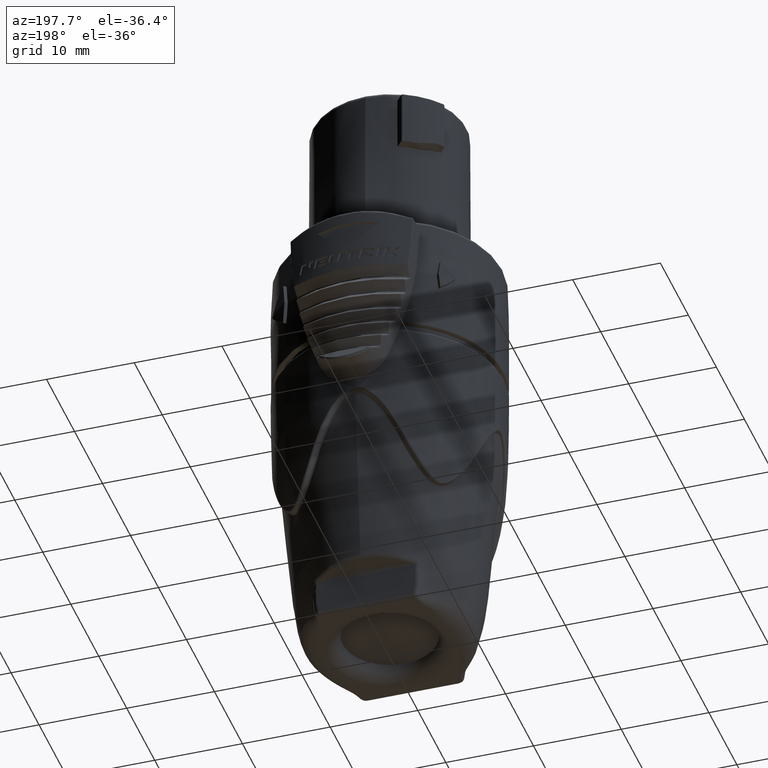
[diagram: clean part render]
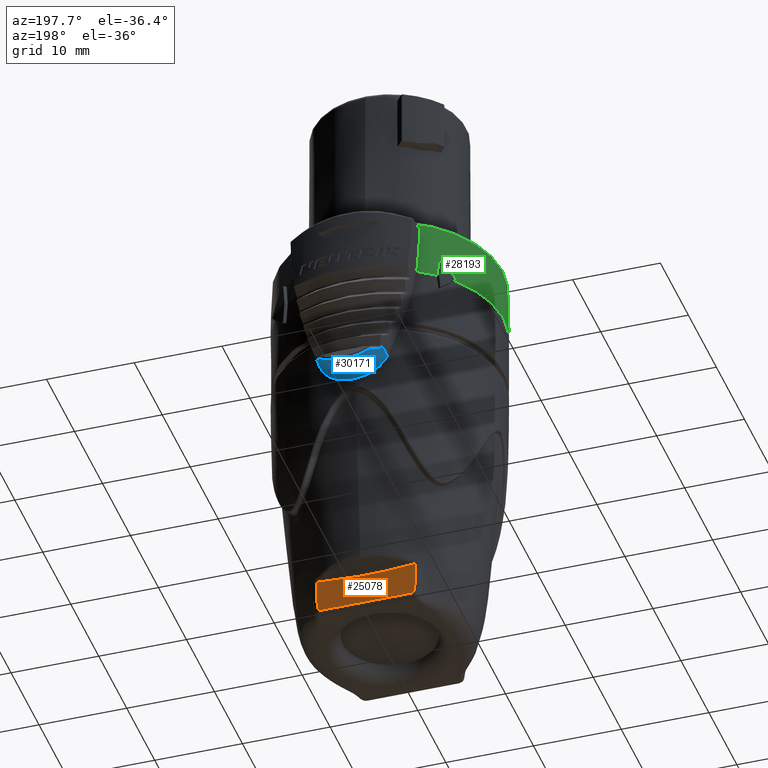
[diagram: same view with three faces highlighted in distinct colors, each labeled with its STEP entity id]
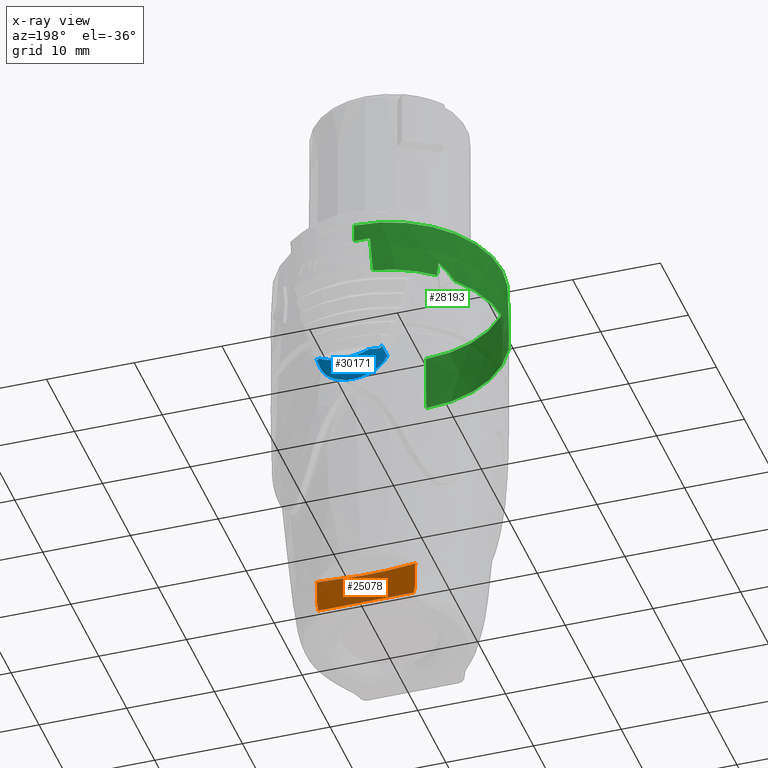
[diagram: x-ray of the same camera — body ghosted, the three highlighted faces saturated]
A machine part, auxiliary view with three faces highlighted in distinct colors.
The next image is the same camera in x-ray (body ghosted, the three faces saturated) — at least one of them is partly hidden behind the body in this view.
Their STEP definitions:

[orange] entity #25078 — the highlighted planar face has unit normal (0, -1, 0).
#6594=DIRECTION('',(-1.E0,-7.812805614676E-9,0.E0));
#6595=VECTOR('',#6594,1.086723394528E1);
#6596=CARTESIAN_POINT('',(5.433621006589E0,8.500000079045E0,-3.82E1));
#6597=LINE('',#6596,#6595);
#6598=CARTESIAN_POINT('',(5.577548566417E0,8.499999999995E0,-3.718574104676E1));
#6599=CARTESIAN_POINT('',(5.567569021817E0,8.499999999995E0,-3.729886659428E1));
#6600=CARTESIAN_POINT('',(5.543770496565E0,8.500000010542E0,-3.752481093648E1));
#6601=CARTESIAN_POINT('',(5.496532808952E0,8.499999963112E0,-3.785984937860E1));
#6602=CARTESIAN_POINT('',(5.456140950782E0,8.500000079045E0,-3.808642860528E1));
#6603=CARTESIAN_POINT('',(5.433621006589E0,8.500000079045E0,-3.82E1));
#6605=CARTESIAN_POINT('',(5.590055008339E0,8.500000036899E0,-3.703932908675E1));
#6606=CARTESIAN_POINT('',(5.588051496235E0,8.500000036899E0,-3.706353275749E1));
#6607=CARTESIAN_POINT('',(5.583968101124E0,8.499999981553E0,-3.711213878719E1));
#6608=CARTESIAN_POINT('',(5.579719469923E0,8.499999999995E0,-3.716114121148E1));
#6609=CARTESIAN_POINT('',(5.577548566417E0,8.499999999995E0,-3.718574104676E1));
#6611=CARTESIAN_POINT('',(5.627762821535E0,8.499999814974E0,-3.442400399493E1));
#6612=CARTESIAN_POINT('',(5.620221700586E0,8.499999603857E0,-3.444812037383E1));
#6613=CARTESIAN_POINT('',(5.607096598030E0,8.500000183851E0,-3.449657848038E1));
#6614=CARTESIAN_POINT('',(5.593252967889E0,8.499999950737E0,-3.457061954606E1));
#6615=CARTESIAN_POINT('',(5.585173596973E0,8.500000013200E0,-3.464393031468E1));
#6616=CARTESIAN_POINT('',(5.581834163568E0,8.499999996463E0,-3.471651985008E1));
#6617=CARTESIAN_POINT('',(5.581371501976E0,8.500000000948E0,-3.478616079990E1));
#6618=CARTESIAN_POINT('',(5.582418609183E0,8.499999999746E0,-3.485450509897E1));
#6619=CARTESIAN_POINT('',(5.584454517876E0,8.500000000068E0,-3.492223997557E1));
#6620=CARTESIAN_POINT('',(5.587447910060E0,8.499999999982E0,-3.499748235325E1));
#6621=CARTESIAN_POINT('',(5.591437747455E0,8.500000000005E0,-3.508271832072E1));
#6622=CARTESIAN_POINT('',(5.596111387799E0,8.499999999999E0,-3.517514893379E1));
#6623=CARTESIAN_POINT('',(5.601196392155E0,8.5E0,-3.527400081492E1));
#6624=CARTESIAN_POINT('',(5.606513934112E0,8.5E0,-3.538056113422E1));
#6625=CARTESIAN_POINT('',(5.611830362511E0,8.499999999999E0,-3.549560109956E1));
#6626=CARTESIAN_POINT('',(5.616867821458E0,8.500000000004E0,-3.561986669397E1));
#6627=CARTESIAN_POINT('',(5.621280547500E0,8.499999999986E0,-3.575351120229E1));
#6628=CARTESIAN_POINT('',(5.624695740888E0,8.500000000053E0,-3.589723549909E1));
#6629=CARTESIAN_POINT('',(5.626676005463E0,8.499999999802E0,-3.605230165857E1));
#6630=CARTESIAN_POINT('',(5.626673450385E0,8.500000000739E0,-3.621989542492E1));
#6631=CARTESIAN_POINT('',(5.624020432061E0,8.499999997241E0,-3.640090535719E1));
#6632=CARTESIAN_POINT('',(5.617920722302E0,8.500000010295E0,-3.659629403585E1));
#6633=CARTESIAN_POINT('',(5.607407939957E0,8.499999961579E0,-3.680739047309E1));
#6634=CARTESIAN_POINT('',(5.596612179071E0,8.500000082786E0,-3.696011704429E1));
#6635=CARTESIAN_POINT('',(5.590055008339E0,8.500000036899E0,-3.703932908675E1));
#6637=CARTESIAN_POINT('',(5.656519938907E0,8.499999945812E0,-3.433119912136E1));
#6638=CARTESIAN_POINT('',(5.651744661051E0,8.499999945812E0,-3.434676267819E1));
#6639=CARTESIAN_POINT('',(5.642181423307E0,8.500000119607E0,-3.437779520690E1));
#6640=CARTESIAN_POINT('',(5.632570815563E0,8.499999814974E0,-3.440863181999E1));
#6641=CARTESIAN_POINT('',(5.627762821535E0,8.499999814974E0,-3.442400399493E1));
#6643=CARTESIAN_POINT('',(5.656519938907E0,8.499999945812E0,-3.433119912136E1));
#6644=CARTESIAN_POINT('',(5.114726214625E0,8.499999945812E0,-3.438348677819E1));
#6645=CARTESIAN_POINT('',(4.068824128779E0,8.500000025150E0,-3.447164035514E1));
#6646=CARTESIAN_POINT('',(2.628547665676E0,8.499999993257E0,-3.455875279787E1));
#6647=CARTESIAN_POINT('',(1.272191716337E0,8.500000001820E0,-3.460815732585E1));
#6648=CARTESIAN_POINT('',(1.127751754406E-3,8.499999999462E0,
-3.462372635067E1));
#6649=CARTESIAN_POINT('',(-1.273201780056E0,8.500000000334E0,
-3.460814803370E1));
#6650=CARTESIAN_POINT('',(-2.628373594269E0,8.499999999204E0,
-3.455875154237E1));
#6651=CARTESIAN_POINT('',(-4.068945232108E0,8.500000002852E0,
-3.447163699065E1));
#6652=CARTESIAN_POINT('',(-5.114744985220E0,8.499999993876E0,
-3.438348489654E1));
#6653=CARTESIAN_POINT('',(-5.656519972875E0,8.499999993876E0,
-3.433119901063E1));
#6655=CARTESIAN_POINT('',(-5.627776086277E0,8.499999810857E0,
-3.442396538060E1));
#6656=CARTESIAN_POINT('',(-5.632582050026E0,8.499999810857E0,
-3.440859957427E1));
#6657=CARTESIAN_POINT('',(-5.642186988119E0,8.500000097633E0,
-3.437777531237E1));
#6658=CARTESIAN_POINT('',(-5.651746715987E0,8.499999993876E0,
-3.434675598118E1));
#6659=CARTESIAN_POINT('',(-5.656519972875E0,8.499999993876E0,
-3.433119901063E1));
#6661=CARTESIAN_POINT('',(-5.590010607654E0,8.500000017895E0,
-3.703992625399E1));
#6662=CARTESIAN_POINT('',(-5.596588863737E0,8.500000089865E0,
-3.696050910037E1));
#6663=CARTESIAN_POINT('',(-5.607412232218E0,8.499999958294E0,
-3.680743032470E1));
#6664=CARTESIAN_POINT('',(-5.617939052318E0,8.500000011175E0,
-3.659591348410E1));
#6665=CARTESIAN_POINT('',(-5.624029036045E0,8.499999997006E0,
-3.640041528955E1));
#6666=CARTESIAN_POINT('',(-5.626668740876E0,8.500000000802E0,
-3.621961500066E1));
#6667=CARTESIAN_POINT('',(-5.626667198723E0,8.499999999785E0,
-3.605242046865E1));
#6668=CARTESIAN_POINT('',(-5.624695099504E0,8.500000000058E0,-3.589782191E1));
#6669=CARTESIAN_POINT('',(-5.621300199471E0,8.499999999985E0,
-3.575463923189E1));
#6670=CARTESIAN_POINT('',(-5.616917633672E0,8.500000000004E0,
-3.562155603571E1));
#6671=CARTESIAN_POINT('',(-5.611915154082E0,8.499999999999E0,
-3.549782549205E1));
#6672=CARTESIAN_POINT('',(-5.606643258888E0,8.5E0,-3.538345952529E1));
#6673=CARTESIAN_POINT('',(-5.601351663270E0,8.5E0,-3.527722123603E1));
#6674=CARTESIAN_POINT('',(-5.596282895366E0,8.499999999999E0,
-3.517861771889E1));
#6675=CARTESIAN_POINT('',(-5.591661827268E0,8.500000000005E0,
-3.508736819590E1));
#6676=CARTESIAN_POINT('',(-5.587610562596E0,8.499999999981E0,
-3.500132886204E1));
#6677=CARTESIAN_POINT('',(-5.584546209388E0,8.500000000070E0,
-3.492495585271E1));
#6678=CARTESIAN_POINT('',(-5.582475242359E0,8.499999999739E0,
-3.485695708817E1));
#6679=CARTESIAN_POINT('',(-5.581384116748E0,8.500000000972E0,
-3.478851945025E1));
#6680=CARTESIAN_POINT('',(-5.581787036837E0,8.499999996371E0,
-3.471820419309E1));
#6681=CARTESIAN_POINT('',(-5.585087051821E0,8.500000013545E0,
-3.464495192059E1));
#6682=CARTESIAN_POINT('',(-5.593179056130E0,8.499999949450E0,
-3.457109233292E1));
#6683=CARTESIAN_POINT('',(-5.607037163865E0,8.500000188656E0,
-3.449683113893E1));
#6684=CARTESIAN_POINT('',(-5.620206732696E0,8.499999593503E0,
-3.444817261938E1));
#6685=CARTESIAN_POINT('',(-5.627776086277E0,8.499999810857E0,
-3.442396538060E1));
#6687=CARTESIAN_POINT('',(-5.577499098889E0,8.499999999999E0,
-3.718630264606E1));
#6688=CARTESIAN_POINT('',(-5.579672311982E0,8.499999999999E0,
-3.716169501505E1));
#6689=CARTESIAN_POINT('',(-5.583923301705E0,8.499999991053E0,
-3.711269065218E1));
#6690=CARTESIAN_POINT('',(-5.588007289162E0,8.500000017895E0,
-3.706411023551E1));
#6691=CARTESIAN_POINT('',(-5.590010607654E0,8.500000017895E0,
-3.703992625399E1));
#6693=CARTESIAN_POINT('',(-5.433612938692E0,8.499999994142E0,-3.82E1));
#6694=CARTESIAN_POINT('',(-5.464142429698E0,8.499999994142E0,
-3.804604859699E1));
#6695=CARTESIAN_POINT('',(-5.519872168491E0,8.500000002930E0,
-3.772342366560E1));
#6696=CARTESIAN_POINT('',(-5.561244335092E0,8.499999999999E0,
-3.737042278505E1));
#6697=CARTESIAN_POINT('',(-5.577499098889E0,8.499999999999E0,
-3.718630264606E1));
#11331=VERTEX_POINT('',#6643);
#11332=VERTEX_POINT('',#6653);
#11335=CARTESIAN_POINT('',(5.433621006589E0,8.500000079045E0,-3.82E1));
#11336=CARTESIAN_POINT('',(-5.433612938692E0,8.499999994142E0,-3.82E1));
#11337=VERTEX_POINT('',#11335);
#11338=VERTEX_POINT('',#11336);
#11375=VERTEX_POINT('',#6605);
#11376=VERTEX_POINT('',#6609);
#11377=VERTEX_POINT('',#6611);
#11384=VERTEX_POINT('',#6655);
#11386=VERTEX_POINT('',#6661);
#11387=VERTEX_POINT('',#6687);
#25052=CARTESIAN_POINT('',(-1.4103E1,8.5E0,-3.43E1));
#25053=DIRECTION('',(0.E0,-1.E0,0.E0));
#25054=DIRECTION('',(0.E0,0.E0,-1.E0));
#25055=AXIS2_PLACEMENT_3D('',#25052,#25053,#25054);
#25056=PLANE('',#25055);
#25058=ORIENTED_EDGE('',*,*,#25057,.F.);
#25060=ORIENTED_EDGE('',*,*,#25059,.F.);
#25062=ORIENTED_EDGE('',*,*,#25061,.F.);
#25063=ORIENTED_EDGE('',*,*,#25042,.F.);
#25065=ORIENTED_EDGE('',*,*,#25064,.F.);
#25067=ORIENTED_EDGE('',*,*,#25066,.T.);
#25069=ORIENTED_EDGE('',*,*,#25068,.F.);
#25071=ORIENTED_EDGE('',*,*,#25070,.F.);
#25073=ORIENTED_EDGE('',*,*,#25072,.F.);
#25075=ORIENTED_EDGE('',*,*,#25074,.F.);
#25076=EDGE_LOOP('',(#25058,#25060,#25062,#25063,#25065,#25067,#25069,#25071,
#25073,#25075));
#25077=FACE_OUTER_BOUND('',#25076,.F.);
#25078=ADVANCED_FACE('',(#25077),#25056,.F.);
#6604=B_SPLINE_CURVE_WITH_KNOTS('',3,(#6598,#6599,#6600,#6601,#6602,#6603),
.UNSPECIFIED.,.F.,.F.,(4,1,1,4),(0.E0,3.333333333333E-1,6.666666666667E-1,1.E0),
.UNSPECIFIED.);
#6610=B_SPLINE_CURVE_WITH_KNOTS('',3,(#6605,#6606,#6607,#6608,#6609),
.UNSPECIFIED.,.F.,.F.,(4,1,4),(0.E0,5.E-1,1.E0),.UNSPECIFIED.);
#6636=B_SPLINE_CURVE_WITH_KNOTS('',3,(#6611,#6612,#6613,#6614,#6615,#6616,#6617,
#6618,#6619,#6620,#6621,#6622,#6623,#6624,#6625,#6626,#6627,#6628,#6629,#6630,
#6631,#6632,#6633,#6634,#6635),.UNSPECIFIED.,.F.,.F.,(4,1,1,1,1,1,1,1,1,1,1,1,1,
1,1,1,1,1,1,1,1,1,4),(0.E0,4.545454545455E-2,9.090909090909E-2,
1.363636363636E-1,1.818181818182E-1,2.272727272727E-1,2.727272727273E-1,
3.181818181818E-1,3.636363636364E-1,4.090909090909E-1,4.545454545455E-1,5.E-1,
5.454545454545E-1,5.909090909091E-1,6.363636363636E-1,6.818181818182E-1,
7.272727272727E-1,7.727272727273E-1,8.181818181818E-1,8.636363636364E-1,
9.090909090909E-1,9.545454545455E-1,1.E0),.UNSPECIFIED.);
#6642=B_SPLINE_CURVE_WITH_KNOTS('',3,(#6637,#6638,#6639,#6640,#6641),
.UNSPECIFIED.,.F.,.F.,(4,1,4),(0.E0,5.E-1,1.E0),.UNSPECIFIED.);
#6654=B_SPLINE_CURVE_WITH_KNOTS('',3,(#6643,#6644,#6645,#6646,#6647,#6648,#6649,
#6650,#6651,#6652,#6653),.UNSPECIFIED.,.F.,.F.,(4,1,1,1,1,1,1,1,4),(0.E0,
1.25E-1,2.5E-1,3.75E-1,5.E-1,6.25E-1,7.5E-1,8.75E-1,1.E0),.UNSPECIFIED.);
#6660=B_SPLINE_CURVE_WITH_KNOTS('',3,(#6655,#6656,#6657,#6658,#6659),
.UNSPECIFIED.,.F.,.F.,(4,1,4),(0.E0,5.E-1,1.E0),.UNSPECIFIED.);
#6686=B_SPLINE_CURVE_WITH_KNOTS('',3,(#6661,#6662,#6663,#6664,#6665,#6666,#6667,
#6668,#6669,#6670,#6671,#6672,#6673,#6674,#6675,#6676,#6677,#6678,#6679,#6680,
#6681,#6682,#6683,#6684,#6685),.UNSPECIFIED.,.F.,.F.,(4,1,1,1,1,1,1,1,1,1,1,1,1,
1,1,1,1,1,1,1,1,1,4),(0.E0,4.545454545455E-2,9.090909090909E-2,
1.363636363636E-1,1.818181818182E-1,2.272727272727E-1,2.727272727273E-1,
3.181818181818E-1,3.636363636364E-1,4.090909090909E-1,4.545454545455E-1,5.E-1,
5.454545454545E-1,5.909090909091E-1,6.363636363636E-1,6.818181818182E-1,
7.272727272727E-1,7.727272727273E-1,8.181818181818E-1,8.636363636364E-1,
9.090909090909E-1,9.545454545455E-1,1.E0),.UNSPECIFIED.);
#6692=B_SPLINE_CURVE_WITH_KNOTS('',3,(#6687,#6688,#6689,#6690,#6691),
.UNSPECIFIED.,.F.,.F.,(4,1,4),(0.E0,5.E-1,1.E0),.UNSPECIFIED.);
#6698=B_SPLINE_CURVE_WITH_KNOTS('',3,(#6693,#6694,#6695,#6696,#6697),
.UNSPECIFIED.,.F.,.F.,(4,1,4),(0.E0,5.E-1,1.E0),.UNSPECIFIED.);
#25042=EDGE_CURVE('',#11377,#11375,#6636,.T.);
#25057=EDGE_CURVE('',#11337,#11338,#6597,.T.);
#25059=EDGE_CURVE('',#11376,#11337,#6604,.T.);
#25061=EDGE_CURVE('',#11375,#11376,#6610,.T.);
#25064=EDGE_CURVE('',#11331,#11377,#6642,.T.);
#25066=EDGE_CURVE('',#11331,#11332,#6654,.T.);
#25068=EDGE_CURVE('',#11384,#11332,#6660,.T.);
#25070=EDGE_CURVE('',#11386,#11384,#6686,.T.);
#25072=EDGE_CURVE('',#11387,#11386,#6692,.T.);
#25074=EDGE_CURVE('',#11338,#11387,#6698,.T.);

[blue] entity #30171 — the highlighted face is a freeform B-spline surface patch.
#9058=DIRECTION('',(3.264244922240E-2,9.993908762592E-1,1.234289101282E-2));
#9059=VECTOR('',#9058,1.912319335684E0);
#9060=CARTESIAN_POINT('',(-3.819725237698E0,1.280123564609E1,
-8.884550504571E0));
#9061=LINE('',#9060,#9059);
#9142=CARTESIAN_POINT('',(-3.819725237698E0,1.280123564609E1,
-8.884550504571E0));
#9143=CARTESIAN_POINT('',(-3.733311890008E0,1.282460946542E1,
-9.110745797968E0));
#9144=CARTESIAN_POINT('',(-3.527924167322E0,1.287855597064E1,
-9.533388890874E0));
#9145=CARTESIAN_POINT('',(-3.116492442420E0,1.297490955549E1,
-1.010089357010E1));
#9146=CARTESIAN_POINT('',(-2.695836665061E0,1.305971126952E1,
-1.051823495745E1));
#9147=CARTESIAN_POINT('',(-2.287156687654E0,1.312997386742E1,
-1.082990671371E1));
#9148=CARTESIAN_POINT('',(-1.858479306833E0,1.319168395581E1,
-1.108435022289E1));
#9149=CARTESIAN_POINT('',(-1.326586819145E0,1.325108582765E1,
-1.131461184076E1));
#9150=CARTESIAN_POINT('',(-6.859046859626E-1,1.329612535994E1,
-1.148053191743E1));
#9151=CARTESIAN_POINT('',(-2.444542425543E-3,1.331233529306E1,
-1.153863691612E1));
#9152=CARTESIAN_POINT('',(6.757201604711E-1,1.329641052802E1,
-1.148154832206E1));
#9153=CARTESIAN_POINT('',(1.300602010987E0,1.325322192136E1,-1.132251897020E1));
#9154=CARTESIAN_POINT('',(1.825794920636E0,1.319584381496E1,-1.110088974986E1));
#9155=CARTESIAN_POINT('',(2.264193506171E0,1.313368867793E1,-1.084581833746E1));
#9156=CARTESIAN_POINT('',(2.682497396578E0,1.306228314510E1,-1.053040549828E1));
#9157=CARTESIAN_POINT('',(3.111591862144E0,1.297605641313E1,-1.010747137656E1));
#9158=CARTESIAN_POINT('',(3.528573207334E0,1.287841385865E1,-9.532907165252E0));
#9159=CARTESIAN_POINT('',(3.733642376252E0,1.282452243769E1,-9.109868317224E0));
#9160=CARTESIAN_POINT('',(3.819725053589E0,1.280123563916E1,-8.884550434374E0));
#9162=CARTESIAN_POINT('',(3.757300804120E0,1.471239008249E1,-8.860946327141E0));
#9163=CARTESIAN_POINT('',(3.744323031920E0,1.470516215984E1,-8.895950729151E0));
#9164=CARTESIAN_POINT('',(3.716872428059E0,1.469984436969E1,-8.966453412907E0));
#9165=CARTESIAN_POINT('',(3.666557812595E0,1.472281878736E1,-9.081899261549E0));
#9166=CARTESIAN_POINT('',(3.618268970786E0,1.477164864870E1,-9.181715924525E0));
#9167=CARTESIAN_POINT('',(3.574279799090E0,1.483883079764E1,-9.265114365012E0));
#9168=CARTESIAN_POINT('',(3.550247184287E0,1.489054574066E1,-9.307239934197E0));
#9169=CARTESIAN_POINT('',(3.539409421279E0,1.491826362781E1,-9.325585390570E0));
#9171=CARTESIAN_POINT('',(3.539409421279E0,1.491826362781E1,-9.325585390570E0));
#9172=CARTESIAN_POINT('',(3.472267505154E0,1.509005698984E1,-9.439312728429E0));
#9173=CARTESIAN_POINT('',(3.328502812415E0,1.542104436848E1,-9.657717999121E0));
#9174=CARTESIAN_POINT('',(3.090880816616E0,1.587402295969E1,-9.955000049963E0));
#9175=CARTESIAN_POINT('',(2.918467682827E0,1.614836469789E1,-1.013461513659E1));
#9176=CARTESIAN_POINT('',(2.829848203040E0,1.627772213789E1,-1.021911431970E1));
#9178=CARTESIAN_POINT('',(2.829848203040E0,1.627772213789E1,-1.021911431970E1));
#9179=CARTESIAN_POINT('',(2.768862580367E0,1.631106885751E1,-1.028004076609E1));
#9180=CARTESIAN_POINT('',(2.634896625799E0,1.638114704111E1,-1.040580319295E1));
#9181=CARTESIAN_POINT('',(2.402561048093E0,1.649019083963E1,-1.059493792144E1));
#9182=CARTESIAN_POINT('',(2.117589467869E0,1.660751093437E1,-1.079130442790E1));
#9183=CARTESIAN_POINT('',(1.773550425204E0,1.672692187399E1,-1.098465377399E1));
#9184=CARTESIAN_POINT('',(1.359329901215E0,1.684078045993E1,-1.116325810487E1));
#9185=CARTESIAN_POINT('',(8.631651132762E-1,1.693635168114E1,
-1.130916482352E1));
#9186=CARTESIAN_POINT('',(3.100889809640E-1,1.699188909233E1,
-1.139232128080E1));
#9187=CARTESIAN_POINT('',(-2.636153434331E-1,1.699423193236E1,
-1.139580887348E1));
#9188=CARTESIAN_POINT('',(-8.233685209505E-1,1.694224289996E1,
-1.131805905921E1));
#9189=CARTESIAN_POINT('',(-1.328863216840E0,1.684806635386E1,
-1.117448972720E1));
#9190=CARTESIAN_POINT('',(-1.753120169600E0,1.673337406262E1,
-1.099497969213E1));
#9191=CARTESIAN_POINT('',(-2.103419027265E0,1.661297590012E1,
-1.080028607252E1));
#9192=CARTESIAN_POINT('',(-2.394266800267E0,1.649391918773E1,
-1.060133843729E1));
#9193=CARTESIAN_POINT('',(-2.631342760763E0,1.638298342607E1,
-1.040907001534E1));
#9194=CARTESIAN_POINT('',(-2.767785950109E0,1.631165598037E1,
-1.028111351445E1));
#9195=CARTESIAN_POINT('',(-2.829848244043E0,1.627772213990E1,
-1.021911435960E1));
#9197=CARTESIAN_POINT('',(-2.829848244043E0,1.627772213990E1,
-1.021911435960E1));
#9198=CARTESIAN_POINT('',(-2.918477037465E0,1.614835154273E1,
-1.013460640725E1));
#9199=CARTESIAN_POINT('',(-3.090897459752E0,1.587398879403E1,
-9.954980089203E0));
#9200=CARTESIAN_POINT('',(-3.328493402641E0,1.542106574952E1,
-9.657729585084E0));
#9201=CARTESIAN_POINT('',(-3.472263684898E0,1.509006587275E1,
-9.439318901705E0));
#9202=CARTESIAN_POINT('',(-3.539409452768E0,1.491826362931E1,
-9.325585407498E0));
#9204=CARTESIAN_POINT('',(-3.539409452768E0,1.491826362931E1,
-9.325585407498E0));
#9205=CARTESIAN_POINT('',(-3.550249844171E0,1.489053949023E1,
-9.307234883545E0));
#9206=CARTESIAN_POINT('',(-3.574269505435E0,1.483884071048E1,
-9.265136671931E0));
#9207=CARTESIAN_POINT('',(-3.618265847279E0,1.477168433672E1,
-9.181709987104E0));
#9208=CARTESIAN_POINT('',(-3.666292347955E0,1.472302579452E1,
-9.082473502973E0));
#9209=CARTESIAN_POINT('',(-3.716806160395E0,1.469982296573E1,
-8.966627221394E0));
#9210=CARTESIAN_POINT('',(-3.744297005553E0,1.470514848925E1,
-8.896026443389E0));
#9211=CARTESIAN_POINT('',(-3.757302450886E0,1.471239014267E1,
-8.860946955429E0));
#9213=CARTESIAN_POINT('',(3.819725053589E0,1.280123563916E1,-8.884550434374E0));
#9298=CARTESIAN_POINT('',(3.757300804120E0,1.471239008249E1,-8.860946327141E0));
#9300=DIRECTION('',(3.264321405835E-2,-9.993908476733E-1,-1.234318284336E-2));
#9301=VECTOR('',#9300,1.912319337105E0);
#9302=CARTESIAN_POINT('',(3.757300804120E0,1.471239008249E1,-8.860946327141E0));
#9303=LINE('',#9302,#9301);
#11720=VERTEX_POINT('',#9298);
#11722=VERTEX_POINT('',#9169);
#11725=VERTEX_POINT('',#9176);
#11727=VERTEX_POINT('',#9195);
#11730=VERTEX_POINT('',#9202);
#11732=VERTEX_POINT('',#9211);
#11784=VERTEX_POINT('',#9213);
#11786=VERTEX_POINT('',#9142);
#30086=CARTESIAN_POINT('',(-3.729663427495E0,1.557313044226E1,
-8.849075755293E0));
#30087=CARTESIAN_POINT('',(-3.770253735359E0,1.432385528865E1,
-8.865064007564E0));
#30088=CARTESIAN_POINT('',(-3.810844043224E0,1.307458013504E1,
-8.881052259835E0));
#30089=CARTESIAN_POINT('',(-3.851434351088E0,1.182530498142E1,
-8.897040512107E0));
#30090=CARTESIAN_POINT('',(-3.639264084693E0,1.567221326767E1,
-9.078577848515E0));
#30091=CARTESIAN_POINT('',(-3.678879380637E0,1.442293811406E1,
-9.097041484259E0));
#30092=CARTESIAN_POINT('',(-3.718494676580E0,1.317366296045E1,
-9.115505120003E0));
#30093=CARTESIAN_POINT('',(-3.758109972523E0,1.192438780683E1,
-9.133968755747E0));
#30094=CARTESIAN_POINT('',(-3.418593507925E0,1.588012676912E1,
-9.515784274834E0));
#30095=CARTESIAN_POINT('',(-3.455775085654E0,1.463085161551E1,
-9.539067092573E0));
#30096=CARTESIAN_POINT('',(-3.492956663383E0,1.338157646189E1,
-9.562349910312E0));
#30097=CARTESIAN_POINT('',(-3.530138241112E0,1.213230130828E1,
-9.585632728051E0));
#30098=CARTESIAN_POINT('',(-2.973211702863E0,1.620271589331E1,
-1.010147822870E1));
#30099=CARTESIAN_POINT('',(-3.005587517184E0,1.495344073970E1,
-1.013107472771E1));
#30100=CARTESIAN_POINT('',(-3.037963331505E0,1.370416558609E1,
-1.016067122672E1));
#30101=CARTESIAN_POINT('',(-3.070339145826E0,1.245489043248E1,
-1.019026772573E1));
#30102=CARTESIAN_POINT('',(-2.438723901320E0,1.650193358345E1,
-1.058784992664E1));
#30103=CARTESIAN_POINT('',(-2.465246492627E0,1.525265842984E1,
-1.062277598727E1));
#30104=CARTESIAN_POINT('',(-2.491769083934E0,1.400338327623E1,
-1.065770204791E1));
#30105=CARTESIAN_POINT('',(-2.518291675242E0,1.275410812262E1,
-1.069262810854E1));
#30106=CARTESIAN_POINT('',(-1.846564864096E0,1.674935978363E1,
-1.095949131789E1));
#30107=CARTESIAN_POINT('',(-1.866687587585E0,1.550008463002E1,
-1.099843241403E1));
#30108=CARTESIAN_POINT('',(-1.886810311074E0,1.425080947641E1,
-1.103737351018E1));
#30109=CARTESIAN_POINT('',(-1.906933034563E0,1.300153432280E1,
-1.107631460632E1));
#30110=CARTESIAN_POINT('',(-1.235564910536E0,1.692618906408E1,
-1.121145274644E1));
#30111=CARTESIAN_POINT('',(-1.249002209913E0,1.567691391047E1,
-1.125315574264E1));
#30112=CARTESIAN_POINT('',(-1.262439509290E0,1.442763875686E1,
-1.129485873884E1));
#30113=CARTESIAN_POINT('',(-1.275876808666E0,1.317836360325E1,
-1.133656173504E1));
#30114=CARTESIAN_POINT('',(-6.189861895887E-1,1.703148907508E1,
-1.135685150413E1));
#30115=CARTESIAN_POINT('',(-6.257243876935E-1,1.578221392147E1,
-1.140013077416E1));
#30116=CARTESIAN_POINT('',(-6.324625857983E-1,1.453293876786E1,
-1.144341004419E1));
#30117=CARTESIAN_POINT('',(-6.392007839031E-1,1.328366361425E1,
-1.148668931422E1));
#30118=CARTESIAN_POINT('',(-1.080227934880E-9,1.706646114413E1,
-1.140441790841E1));
#30119=CARTESIAN_POINT('',(-1.103047847506E-9,1.581718599051E1,
-1.144821674790E1));
#30120=CARTESIAN_POINT('',(-1.125868009932E-9,1.456791083690E1,
-1.149201558740E1));
#30121=CARTESIAN_POINT('',(-1.148687978070E-9,1.331863568329E1,
-1.153581442689E1));
#30122=CARTESIAN_POINT('',(6.189861862813E-1,1.703148907546E1,
-1.135685150464E1));
#30123=CARTESIAN_POINT('',(6.257243843681E-1,1.578221392185E1,
-1.140013077468E1));
#30124=CARTESIAN_POINT('',(6.324625824549E-1,1.453293876824E1,
-1.144341004471E1));
#30125=CARTESIAN_POINT('',(6.392007805416E-1,1.328366361463E1,
-1.148668931475E1));
#30126=CARTESIAN_POINT('',(1.235564909339E0,1.692618906445E1,
-1.121145274697E1));
#30127=CARTESIAN_POINT('',(1.249002208696E0,1.567691391084E1,
-1.125315574317E1));
#30128=CARTESIAN_POINT('',(1.262439508053E0,1.442763875723E1,
-1.129485873938E1));
#30129=CARTESIAN_POINT('',(1.275876807409E0,1.317836360362E1,
-1.133656173559E1));
#30130=CARTESIAN_POINT('',(1.846564863949E0,1.674935978367E1,
-1.095949131794E1));
#30131=CARTESIAN_POINT('',(1.866687587433E0,1.550008463006E1,
-1.099843241409E1));
#30132=CARTESIAN_POINT('',(1.886810310917E0,1.425080947645E1,
-1.103737351024E1));
#30133=CARTESIAN_POINT('',(1.906933034401E0,1.300153432283E1,
-1.107631460639E1));
#30134=CARTESIAN_POINT('',(2.438723900557E0,1.650193358383E1,
-1.058784992721E1));
#30135=CARTESIAN_POINT('',(2.465246491863E0,1.525265843021E1,
-1.062277598785E1));
#30136=CARTESIAN_POINT('',(2.491769083169E0,1.400338327660E1,
-1.065770204848E1));
#30137=CARTESIAN_POINT('',(2.518291674474E0,1.275410812299E1,
-1.069262810912E1));
#30138=CARTESIAN_POINT('',(2.973211702925E0,1.620271589331E1,
-1.010147822873E1));
#30139=CARTESIAN_POINT('',(3.005587517242E0,1.495344073970E1,
-1.013107472774E1));
#30140=CARTESIAN_POINT('',(3.037963331560E0,1.370416558609E1,
-1.016067122676E1));
#30141=CARTESIAN_POINT('',(3.070339145878E0,1.245489043248E1,
-1.019026772577E1));
#30142=CARTESIAN_POINT('',(3.418593508175E0,1.588012676891E1,
-9.515784274433E0));
#30143=CARTESIAN_POINT('',(3.455775085908E0,1.463085161530E1,
-9.539067092166E0));
#30144=CARTESIAN_POINT('',(3.492956663641E0,1.338157646169E1,
-9.562349909899E0));
#30145=CARTESIAN_POINT('',(3.530138241375E0,1.213230130807E1,
-9.585632727633E0));
#30146=CARTESIAN_POINT('',(3.639264084780E0,1.567221326757E1,
-9.078577848294E0));
#30147=CARTESIAN_POINT('',(3.678879380725E0,1.442293811396E1,
-9.097041484035E0));
#30148=CARTESIAN_POINT('',(3.718494676669E0,1.317366296035E1,
-9.115505119777E0));
#30149=CARTESIAN_POINT('',(3.758109972613E0,1.192438780674E1,
-9.133968755519E0));
#30150=CARTESIAN_POINT('',(3.729663427495E0,1.557313044226E1,
-8.849075755291E0));
#30151=CARTESIAN_POINT('',(3.770253735360E0,1.432385528865E1,
-8.865064007563E0));
#30152=CARTESIAN_POINT('',(3.810844043224E0,1.307458013504E1,
-8.881052259834E0));
#30153=CARTESIAN_POINT('',(3.851434351089E0,1.182530498142E1,
-8.897040512105E0));
#30154=B_SPLINE_SURFACE_WITH_KNOTS('',3,3,((#30086,#30087,#30088,#30089),
(#30090,#30091,#30092,#30093),(#30094,#30095,#30096,#30097),(#30098,#30099,
#30100,#30101),(#30102,#30103,#30104,#30105),(#30106,#30107,#30108,#30109),(
#30110,#30111,#30112,#30113),(#30114,#30115,#30116,#30117),(#30118,#30119,
#30120,#30121),(#30122,#30123,#30124,#30125),(#30126,#30127,#30128,#30129),(
#30130,#30131,#30132,#30133),(#30134,#30135,#30136,#30137),(#30138,#30139,
#30140,#30141),(#30142,#30143,#30144,#30145),(#30146,#30147,#30148,#30149),(
#30150,#30151,#30152,#30153)),.UNSPECIFIED.,.F.,.F.,.F.,(4,1,1,1,1,1,1,1,1,1,1,
1,1,1,4),(4,4),(1.233222199137E-5,7.155929079544E-2,1.429660756625E-1,
2.143728605296E-1,2.857796453966E-1,3.571864302637E-1,4.285932151308E-1,
4.999999999978E-1,5.714067848649E-1,6.428135697320E-1,7.142203545990E-1,
7.856271394661E-1,8.570339243332E-1,9.284407092002E-1,9.999876677739E-1),(
5.173910416900E-2,8.425715979423E-1),.UNSPECIFIED.);
#30155=ORIENTED_EDGE('',*,*,#29680,.T.);
#30157=ORIENTED_EDGE('',*,*,#30156,.F.);
#30159=ORIENTED_EDGE('',*,*,#30158,.T.);
#30161=ORIENTED_EDGE('',*,*,#30160,.T.);
#30163=ORIENTED_EDGE('',*,*,#30162,.T.);
#30165=ORIENTED_EDGE('',*,*,#30164,.T.);
#30167=ORIENTED_EDGE('',*,*,#30166,.T.);
#30168=ORIENTED_EDGE('',*,*,#30060,.F.);
#30169=EDGE_LOOP('',(#30155,#30157,#30159,#30161,#30163,#30165,#30167,#30168));
#30170=FACE_OUTER_BOUND('',#30169,.F.);
#30171=ADVANCED_FACE('',(#30170),#30154,.T.);
#9161=B_SPLINE_CURVE_WITH_KNOTS('',3,(#9142,#9143,#9144,#9145,#9146,#9147,#9148,
#9149,#9150,#9151,#9152,#9153,#9154,#9155,#9156,#9157,#9158,#9159,#9160),
.UNSPECIFIED.,.F.,.F.,(4,1,1,1,1,1,1,1,1,1,1,1,1,1,1,1,4),(0.E0,6.25E-2,1.25E-1,
1.875E-1,2.5E-1,3.125E-1,3.75E-1,4.375E-1,5.E-1,5.625E-1,6.25E-1,6.875E-1,
7.5E-1,8.125E-1,8.75E-1,9.375E-1,1.E0),.UNSPECIFIED.);
#9170=B_SPLINE_CURVE_WITH_KNOTS('',3,(#9162,#9163,#9164,#9165,#9166,#9167,#9168,
#9169),.UNSPECIFIED.,.F.,.F.,(4,1,1,1,1,4),(0.E0,2.E-1,4.E-1,6.E-1,8.E-1,1.E0),
.UNSPECIFIED.);
#9177=B_SPLINE_CURVE_WITH_KNOTS('',3,(#9171,#9172,#9173,#9174,#9175,#9176),
.UNSPECIFIED.,.F.,.F.,(4,1,1,4),(0.E0,3.333333333333E-1,6.666666666667E-1,1.E0),
.UNSPECIFIED.);
#9196=B_SPLINE_CURVE_WITH_KNOTS('',3,(#9178,#9179,#9180,#9181,#9182,#9183,#9184,
#9185,#9186,#9187,#9188,#9189,#9190,#9191,#9192,#9193,#9194,#9195),
.UNSPECIFIED.,.F.,.F.,(4,1,1,1,1,1,1,1,1,1,1,1,1,1,1,4),(0.E0,6.666666666667E-2,
1.333333333333E-1,2.E-1,2.666666666667E-1,3.333333333333E-1,4.E-1,
4.666666666667E-1,5.333333333333E-1,6.E-1,6.666666666667E-1,7.333333333333E-1,
8.E-1,8.666666666667E-1,9.333333333333E-1,1.E0),.UNSPECIFIED.);
#9203=B_SPLINE_CURVE_WITH_KNOTS('',3,(#9197,#9198,#9199,#9200,#9201,#9202),
.UNSPECIFIED.,.F.,.F.,(4,1,1,4),(0.E0,3.333333333333E-1,6.666666666667E-1,1.E0),
.UNSPECIFIED.);
#9212=B_SPLINE_CURVE_WITH_KNOTS('',3,(#9204,#9205,#9206,#9207,#9208,#9209,#9210,
#9211),.UNSPECIFIED.,.F.,.F.,(4,1,1,1,1,4),(0.E0,2.E-1,4.E-1,6.E-1,8.E-1,1.E0),
.UNSPECIFIED.);
#29680=EDGE_CURVE('',#11786,#11784,#9161,.T.);
#30060=EDGE_CURVE('',#11786,#11732,#9061,.T.);
#30156=EDGE_CURVE('',#11720,#11784,#9303,.T.);
#30158=EDGE_CURVE('',#11720,#11722,#9170,.T.);
#30160=EDGE_CURVE('',#11722,#11725,#9177,.T.);
#30162=EDGE_CURVE('',#11725,#11727,#9196,.T.);
#30164=EDGE_CURVE('',#11727,#11730,#9203,.T.);
#30166=EDGE_CURVE('',#11730,#11732,#9212,.T.);

[green] entity #28193 — the highlighted conical surface has half-angle 1.5 deg.
#3477=CARTESIAN_POINT('',(0.E0,0.E0,9.513088474154E0));
#3478=DIRECTION('',(0.E0,0.E0,1.E0));
#3479=DIRECTION('',(0.E0,1.E0,0.E0));
#3480=AXIS2_PLACEMENT_3D('',#3477,#3478,#3479);
#7846=CARTESIAN_POINT('',(5.654895810453E-11,1.288590654756E1,
7.357003284725E0));
#7847=CARTESIAN_POINT('',(-1.998094815702E-1,1.288590304378E1,
7.357007409972E0));
#7848=CARTESIAN_POINT('',(-5.996869298469E-1,1.287647057743E1,
7.362391343947E0));
#7849=CARTESIAN_POINT('',(-1.198788380950E0,1.283393947252E1,7.386544827156E0));
#7850=CARTESIAN_POINT('',(-1.597061004882E0,1.278663915209E1,7.413440021718E0));
#7851=CARTESIAN_POINT('',(-1.795664564498E0,1.275825837244E1,7.429576152041E0));
#7859=DIRECTION('',(-2.621789284869E-11,-2.617634313184E-2,9.996573408225E-1));
#7860=VECTOR('',#7859,2.156824245051E0);
#7861=CARTESIAN_POINT('',(5.654895810453E-11,1.288590654756E1,
7.357003284725E0));
#7862=LINE('',#7861,#7860);
#7863=DIRECTION('',(0.E0,2.617694830787E-2,9.996573249756E-1));
#7864=VECTOR('',#7863,6.515321111975E0);
#7865=CARTESIAN_POINT('',(0.E0,-1.3E1,3.E0));
#7866=LINE('',#7865,#7864);
#7867=CARTESIAN_POINT('',(0.E0,0.E0,3.E0));
#7868=DIRECTION('',(0.E0,0.E0,1.E0));
#7869=DIRECTION('',(-7.692307692308E-1,6.389710663783E-1,0.E0));
#7870=AXIS2_PLACEMENT_3D('',#7867,#7868,#7869);
#7872=CARTESIAN_POINT('',(-8.654315666242E0,9.639162872444E0,4.75E0));
#7873=CARTESIAN_POINT('',(-8.848909413827E0,9.470762315033E0,4.570659585491E0));
#7874=CARTESIAN_POINT('',(-9.204422411738E0,9.144382820552E0,4.199944350303E0));
#7875=CARTESIAN_POINT('',(-9.657991089643E0,8.685078104773E0,3.599495246867E0));
#7876=CARTESIAN_POINT('',(-9.894313171598E0,8.425634748563E0,3.200605802029E0));
#7877=CARTESIAN_POINT('',(-1.E1,8.306623862918E0,3.E0));
#7879=CARTESIAN_POINT('',(-8.5E0,9.836157786453E0,3.E0));
#7880=CARTESIAN_POINT('',(-8.5E0,9.829316114070E0,3.197686287573E0));
#7881=CARTESIAN_POINT('',(-8.511659538820E0,9.805643401007E0,3.590934297111E0));
#7882=CARTESIAN_POINT('',(-8.563892839195E0,9.739740053880E0,4.177544461704E0));
#7883=CARTESIAN_POINT('',(-8.620586456736E0,9.676124010557E0,4.560235914501E0));
#7884=CARTESIAN_POINT('',(-8.654315666242E0,9.639162872444E0,4.75E0));
#7886=CARTESIAN_POINT('',(0.E0,0.E0,3.E0));
#7887=DIRECTION('',(0.E0,0.E0,1.E0));
#7888=DIRECTION('',(-1.679997441234E-1,9.857870388550E-1,0.E0));
#7889=AXIS2_PLACEMENT_3D('',#7886,#7887,#7888);
#8448=CARTESIAN_POINT('',(-1.795664564498E0,1.275825837244E1,7.429576152041E0));
#8449=CARTESIAN_POINT('',(-1.800249961285E0,1.276073209259E1,7.311625322081E0));
#8450=CARTESIAN_POINT('',(-1.809378309970E0,1.276546526194E1,7.084069503747E0));
#8451=CARTESIAN_POINT('',(-1.822767604468E0,1.277190116361E1,6.768669031606E0));
#8452=CARTESIAN_POINT('',(-1.835884865420E0,1.277775210185E1,6.476495900634E0));
#8453=CARTESIAN_POINT('',(-1.848703509814E0,1.278306022977E1,6.206009692047E0));
#8454=CARTESIAN_POINT('',(-1.861217765051E0,1.278787231021E1,5.955529341533E0));
#8455=CARTESIAN_POINT('',(-1.873420640919E0,1.279222902345E1,5.723572713658E0));
#8456=CARTESIAN_POINT('',(-1.885309134719E0,1.279616824465E1,5.508752950134E0));
#8457=CARTESIAN_POINT('',(-1.896882054311E0,1.279972448923E1,5.309797615982E0));
#8458=CARTESIAN_POINT('',(-1.908140700285E0,1.280292958809E1,5.125522507009E0));
#8459=CARTESIAN_POINT('',(-1.919087828348E0,1.280581265569E1,4.954837285104E0));
#8460=CARTESIAN_POINT('',(-1.929726887157E0,1.280840024759E1,4.796743876371E0));
#8461=CARTESIAN_POINT('',(-1.940064180092E0,1.281071710465E1,4.650295743493E0));
#8462=CARTESIAN_POINT('',(-1.950104442707E0,1.281278536677E1,4.514652606861E0));
#8463=CARTESIAN_POINT('',(-1.959856433850E0,1.281462599683E1,4.388994597239E0));
#8464=CARTESIAN_POINT('',(-1.969327063607E0,1.281625767546E1,4.272597429163E0));
#8465=CARTESIAN_POINT('',(-1.978521941435E0,1.281769732502E1,4.164809805908E0));
#8466=CARTESIAN_POINT('',(-1.987452964716E0,1.281896132930E1,4.064963052078E0));
#8467=CARTESIAN_POINT('',(-1.996127236494E0,1.282006389464E1,3.972497309270E0));
#8468=CARTESIAN_POINT('',(-2.004555532984E0,1.282101852325E1,3.886856752471E0));
#8469=CARTESIAN_POINT('',(-2.012756437704E0,1.282183812346E1,3.807460299437E0));
#8470=CARTESIAN_POINT('',(-2.020732423427E0,1.282253273903E1,3.733928697005E0));
#8471=CARTESIAN_POINT('',(-2.028482791228E0,1.282311166188E1,3.665929645930E0));
#8472=CARTESIAN_POINT('',(-2.036010730688E0,1.282358398082E1,3.603115007547E0));
#8473=CARTESIAN_POINT('',(-2.043320828298E0,1.282395829997E1,3.545146019198E0));
#8474=CARTESIAN_POINT('',(-2.050426699857E0,1.282424296423E1,3.491638629073E0));
#8475=CARTESIAN_POINT('',(-2.057347263437E0,1.282444550942E1,3.442205859810E0));
#8476=CARTESIAN_POINT('',(-2.064107716569E0,1.282457249009E1,3.396457953163E0));
#8477=CARTESIAN_POINT('',(-2.070740916265E0,1.282462924013E1,3.354002470485E0));
#8478=CARTESIAN_POINT('',(-2.077288566700E0,1.282461954435E1,3.314448751875E0));
#8479=CARTESIAN_POINT('',(-2.083804297952E0,1.282454530685E1,3.277400970386E0));
#8480=CARTESIAN_POINT('',(-2.090353303596E0,1.282440569469E1,3.242490929691E0));
#8481=CARTESIAN_POINT('',(-2.096912124102E0,1.282420041896E1,3.209871239426E0));
#8482=CARTESIAN_POINT('',(-2.103448334299E0,1.282393073896E1,3.179693779284E0));
#8483=CARTESIAN_POINT('',(-2.109942052348E0,1.282359858286E1,3.152010140973E0));
#8484=CARTESIAN_POINT('',(-2.116436360605E0,1.282320247886E1,3.126609977817E0));
#8485=CARTESIAN_POINT('',(-2.122987886901E0,1.282273806960E1,3.103303676029E0));
#8486=CARTESIAN_POINT('',(-2.129678223572E0,1.282219667340E1,3.081904199131E0));
#8487=CARTESIAN_POINT('',(-2.136586771794E0,1.282156587255E1,3.062371436211E0));
#8488=CARTESIAN_POINT('',(-2.143792684253E0,1.282083137594E1,3.044733773863E0));
#8489=CARTESIAN_POINT('',(-2.151736781386E0,1.281992971251E1,3.028574502329E0));
#8490=CARTESIAN_POINT('',(-2.160457192828E0,1.281882982556E1,3.014771033192E0));
#8491=CARTESIAN_POINT('',(-2.170876360093E0,1.281736596919E1,3.003628413075E0));
#8492=CARTESIAN_POINT('',(-2.179355810967E0,1.281602240995E1,3.E0));
#8493=CARTESIAN_POINT('',(-2.183996673604E0,1.281523150512E1,3.E0));
#11818=CARTESIAN_POINT('',(0.E0,1.282944877604E1,9.513088474154E0));
#11820=VERTEX_POINT('',#11818);
#11822=CARTESIAN_POINT('',(0.E0,-1.3E1,3.E0));
#11823=CARTESIAN_POINT('',(0.E0,-1.282944877604E1,9.513088474154E0));
#11824=VERTEX_POINT('',#11822);
#11825=VERTEX_POINT('',#11823);
#11836=VERTEX_POINT('',#7872);
#11837=VERTEX_POINT('',#7877);
#11840=VERTEX_POINT('',#7879);
#11844=CARTESIAN_POINT('',(5.654895810453E-11,1.288590654756E1,
7.357003284725E0));
#11845=VERTEX_POINT('',#11844);
#11848=CARTESIAN_POINT('',(-2.183996673604E0,1.281523150511E1,3.E0));
#11849=VERTEX_POINT('',#11848);
#11850=VERTEX_POINT('',#7851);
#28172=CARTESIAN_POINT('',(0.E0,0.E0,6.256544237077E0));
#28173=DIRECTION('',(0.E0,0.E0,-1.E0));
#28174=DIRECTION('',(0.E0,-1.E0,0.E0));
#28175=AXIS2_PLACEMENT_3D('',#28172,#28173,#28174);
#28176=CONICAL_SURFACE('',#28175,1.291472438802E1,1.5E0);
#28177=ORIENTED_EDGE('',*,*,#28164,.F.);
#28178=ORIENTED_EDGE('',*,*,#18451,.T.);
#28179=ORIENTED_EDGE('',*,*,#18413,.T.);
#28180=ORIENTED_EDGE('',*,*,#18448,.F.);
#28182=ORIENTED_EDGE('',*,*,#28181,.F.);
#28184=ORIENTED_EDGE('',*,*,#28183,.F.);
#28186=ORIENTED_EDGE('',*,*,#28185,.F.);
#28188=ORIENTED_EDGE('',*,*,#28187,.F.);
#28190=ORIENTED_EDGE('',*,*,#28189,.F.);
#28191=EDGE_LOOP('',(#28177,#28178,#28179,#28180,#28182,#28184,#28186,#28188,
#28190));
#28192=FACE_OUTER_BOUND('',#28191,.F.);
#28193=ADVANCED_FACE('',(#28192),#28176,.T.);
#3481=CIRCLE('',#3480,1.282944877604E1);
#7852=B_SPLINE_CURVE_WITH_KNOTS('',3,(#7846,#7847,#7848,#7849,#7850,#7851),
.UNSPECIFIED.,.F.,.F.,(4,1,1,4),(0.E0,3.333333333333E-1,6.666666666667E-1,1.E0),
.UNSPECIFIED.);
#7871=CIRCLE('',#7870,1.3E1);
#7878=B_SPLINE_CURVE_WITH_KNOTS('',3,(#7872,#7873,#7874,#7875,#7876,#7877),
.UNSPECIFIED.,.F.,.F.,(4,1,1,4),(0.E0,3.333333333333E-1,6.666666666667E-1,1.E0),
.UNSPECIFIED.);
#7885=B_SPLINE_CURVE_WITH_KNOTS('',3,(#7879,#7880,#7881,#7882,#7883,#7884),
.UNSPECIFIED.,.F.,.F.,(4,1,1,4),(0.E0,3.333333333333E-1,6.666666666667E-1,1.E0),
.UNSPECIFIED.);
#7890=CIRCLE('',#7889,1.3E1);
#8494=B_SPLINE_CURVE_WITH_KNOTS('',3,(#8448,#8449,#8450,#8451,#8452,#8453,#8454,
#8455,#8456,#8457,#8458,#8459,#8460,#8461,#8462,#8463,#8464,#8465,#8466,#8467,
#8468,#8469,#8470,#8471,#8472,#8473,#8474,#8475,#8476,#8477,#8478,#8479,#8480,
#8481,#8482,#8483,#8484,#8485,#8486,#8487,#8488,#8489,#8490,#8491,#8492,#8493),
.UNSPECIFIED.,.F.,.F.,(4,1,1,1,1,1,1,1,1,1,1,1,1,1,1,1,1,1,1,1,1,1,1,1,1,1,1,1,
1,1,1,1,1,1,1,1,1,1,1,1,1,1,1,4),(0.E0,2.325581395349E-2,4.651162790698E-2,
6.976744186047E-2,9.302325581395E-2,1.162790697674E-1,1.395348837209E-1,
1.627906976744E-1,1.860465116279E-1,2.093023255814E-1,2.325581395349E-1,
2.558139534884E-1,2.790697674419E-1,3.023255813953E-1,3.255813953488E-1,
3.488372093023E-1,3.720930232558E-1,3.953488372093E-1,4.186046511628E-1,
4.418604651163E-1,4.651162790698E-1,4.883720930233E-1,5.116279069767E-1,
5.348837209302E-1,5.581395348837E-1,5.813953488372E-1,6.046511627907E-1,
6.279069767442E-1,6.511627906977E-1,6.744186046512E-1,6.976744186047E-1,
7.209302325581E-1,7.441860465116E-1,7.674418604651E-1,7.906976744186E-1,
8.139534883721E-1,8.372093023256E-1,8.604651162791E-1,8.837209302326E-1,
9.069767441860E-1,9.302325581395E-1,9.534883720930E-1,9.767441860465E-1,1.E0),
.UNSPECIFIED.);
#18413=EDGE_CURVE('',#11820,#11825,#3481,.T.);
#18448=EDGE_CURVE('',#11824,#11825,#7866,.T.);
#18451=EDGE_CURVE('',#11845,#11820,#7862,.T.);
#28164=EDGE_CURVE('',#11845,#11850,#7852,.T.);
#28181=EDGE_CURVE('',#11837,#11824,#7871,.T.);
#28183=EDGE_CURVE('',#11836,#11837,#7878,.T.);
#28185=EDGE_CURVE('',#11840,#11836,#7885,.T.);
#28187=EDGE_CURVE('',#11849,#11840,#7890,.T.);
#28189=EDGE_CURVE('',#11850,#11849,#8494,.T.);